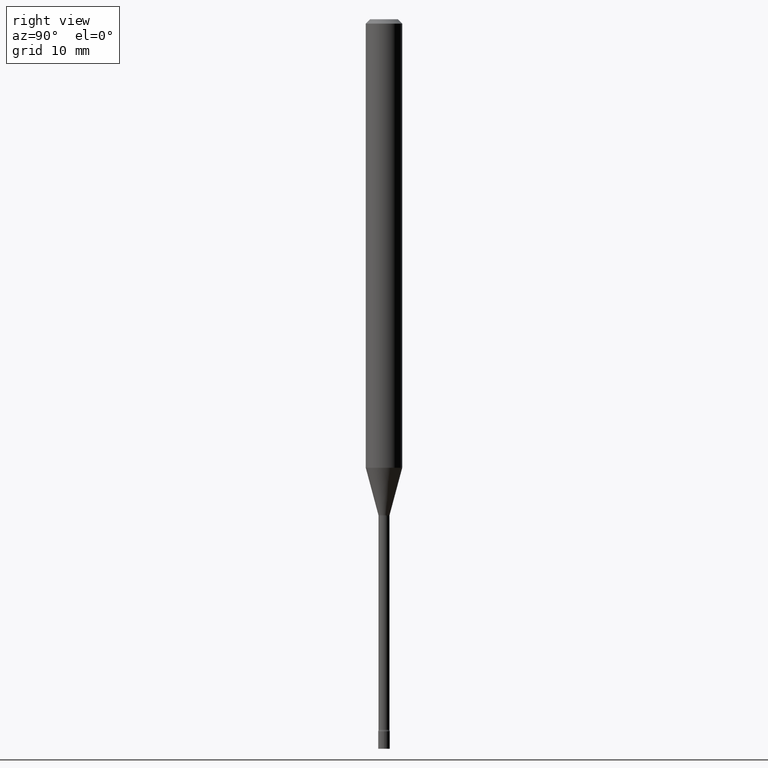
[diagram: clean part render]
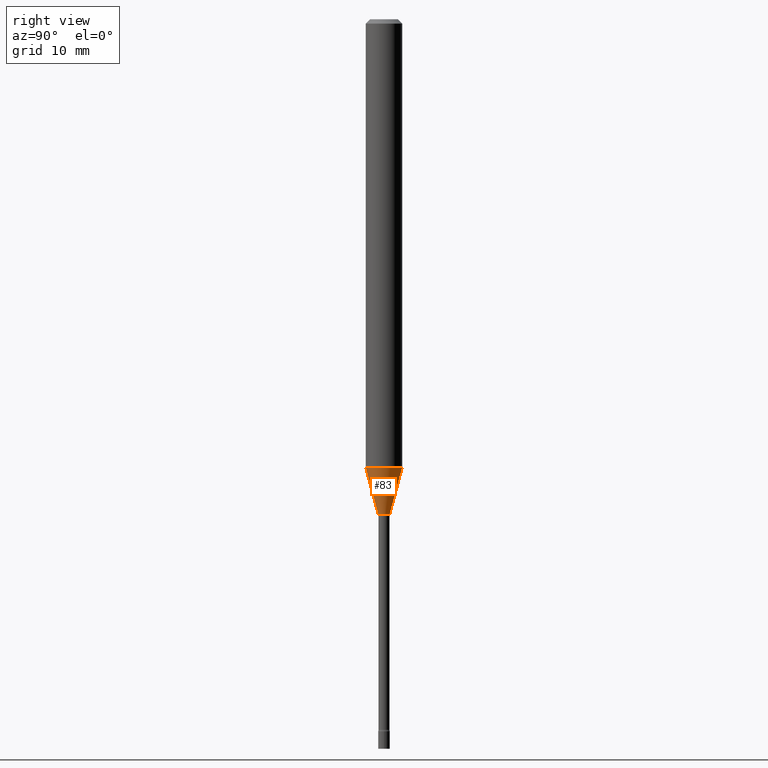
[diagram: same view with one face highlighted and labeled with its STEP entity id]
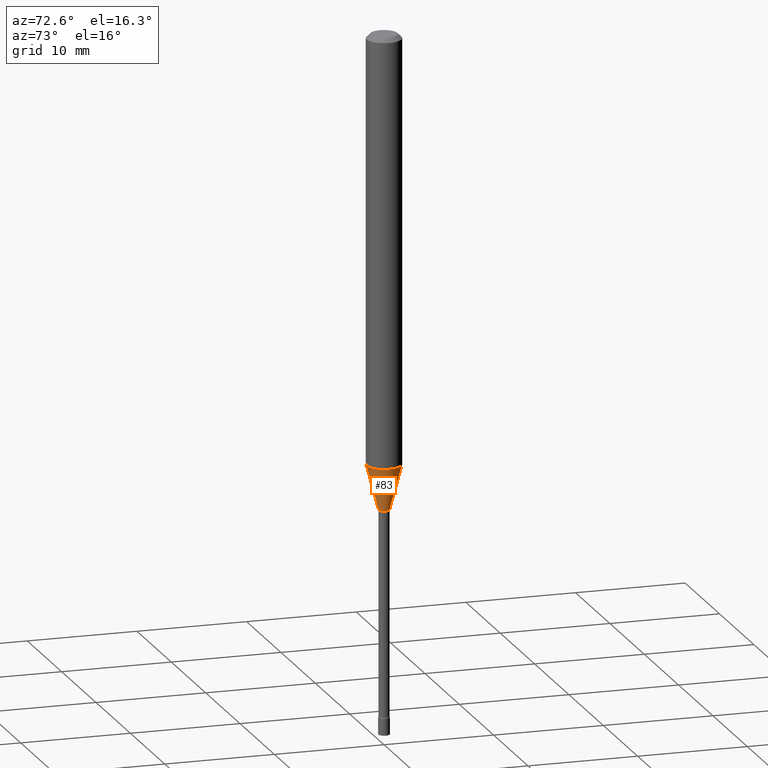
[diagram: same view with one face highlighted and labeled with its STEP entity id]
A machine part, right view. The second image highlights one B-rep face of the part: STEP entity #83.
A second angle (auxiliary view) of the same face is appended — the face is thin or edge-on in the first view.
In plain terms, the highlighted conical surface has half-angle 15 deg.
Its self-contained STEP definition (entity closure, byte-faithful):
#4 = ORIENTED_EDGE ( 'NONE', *, *, #144, .F. ) ;
#24 = LINE ( 'NONE', #286, #421 ) ;
#26 = CIRCLE ( 'NONE', #461, 0.01931111260566397564 ) ;
#28 = EDGE_CURVE ( 'NONE', #481, #315, #24, .T. ) ;
#34 = AXIS2_PLACEMENT_3D ( 'NONE', #168, #490, #385 ) ;
#38 = EDGE_LOOP ( 'NONE', ( #58, #468, #4, #279 ) ) ;
#48 = CARTESIAN_POINT ( 'NONE',  ( 2.906514588320701631E-16, 0.01931111260565804635, -1.698092501787273001 ) ) ;
#58 = ORIENTED_EDGE ( 'NONE', *, *, #222, .T. ) ;
#83 = ADVANCED_FACE ( 'NONE', ( #219 ), #426, .T. ) ;
#121 = CARTESIAN_POINT ( 'NONE',  ( -1.348487785899068030E-16, -0.01931111260566990492, -1.698092501787273001 ) ) ;
#138 = CARTESIAN_POINT ( 'NONE',  ( 3.758396032934700996E-29, -5.366187674140293231E-15, -1.536909379709240131 ) ) ;
#142 = CARTESIAN_POINT ( 'NONE',  ( -1.348487785899068030E-16, -0.01931111260566990492, -1.698092501787273001 ) ) ;
#144 = EDGE_CURVE ( 'NONE', #190, #315, #501, .T. ) ;
#151 = CARTESIAN_POINT ( 'NONE',  ( -4.364351673553541985E-16, -0.06250000000000538458, -1.536909379709239909 ) ) ;
#168 = CARTESIAN_POINT ( 'NONE',  ( 4.152557207687056191E-29, -5.928965736655743861E-15, -1.698092501787273001 ) ) ;
#190 = VERTEX_POINT ( 'NONE', #151 ) ;
#192 = CARTESIAN_POINT ( 'NONE',  ( 4.152557207687056191E-29, -5.928965736655743861E-15, -1.698092501787273001 ) ) ;
#219 = FACE_OUTER_BOUND ( 'NONE', #38, .T. ) ;
#222 = EDGE_CURVE ( 'NONE', #268, #481, #26, .T. ) ;
#268 = VERTEX_POINT ( 'NONE', #121 ) ;
#279 = ORIENTED_EDGE ( 'NONE', *, *, #381, .F. ) ;
#286 = CARTESIAN_POINT ( 'NONE',  ( 1.372137078140398694E-16, 0.01931111260565804635, -1.698092501787273001 ) ) ;
#298 = DIRECTION ( 'NONE',  ( -2.445424618103204141E-29, 3.491544618691502502E-15, 1.000000000000000000 ) ) ;
#315 = VERTEX_POINT ( 'NONE', #327 ) ;
#319 = DIRECTION ( 'NONE',  ( -2.445424618103204141E-29, 3.491544618691502502E-15, 1.000000000000000000 ) ) ;
#327 = CARTESIAN_POINT ( 'NONE',  ( 4.440892098500999885E-16, 0.06249999999999461542, -1.536909379709240575 ) ) ;
#361 = DIRECTION ( 'NONE',  ( -6.982962677686265922E-15, -1.000000000000000000, 0.000000000000000000 ) ) ;
#381 = EDGE_CURVE ( 'NONE', #268, #190, #498, .T. ) ;
#385 = DIRECTION ( 'NONE',  ( -6.982962677686265922E-15, -1.000000000000000000, 0.000000000000000000 ) ) ;
#414 = AXIS2_PLACEMENT_3D ( 'NONE', #138, #298, #420 ) ;
#415 = VECTOR ( 'NONE', #464, 39.37007874015748143 ) ;
#420 = DIRECTION ( 'NONE',  ( -6.982962677686265922E-15, -1.000000000000000000, 4.370956789862821150E-15 ) ) ;
#421 = VECTOR ( 'NONE', #500, 39.37007874015748854 ) ;
#426 = CONICAL_SURFACE ( 'NONE', #34, 0.01931111260566397564, 0.2617993877991498519 ) ;
#461 = AXIS2_PLACEMENT_3D ( 'NONE', #192, #319, #361 ) ;
#464 = DIRECTION ( 'NONE',  ( -1.807323732225327378E-15, -0.2588190451025177974, 0.9659258262890690894 ) ) ;
#468 = ORIENTED_EDGE ( 'NONE', *, *, #28, .T. ) ;
#481 = VERTEX_POINT ( 'NONE', #48 ) ;
#490 = DIRECTION ( 'NONE',  ( -2.445424618103204141E-29, 3.491544618691502502E-15, 1.000000000000000000 ) ) ;
#498 = LINE ( 'NONE', #142, #415 ) ;
#500 = DIRECTION ( 'NONE',  ( 1.839019923739597160E-15, 0.2588190451025245142, 0.9659258262890670910 ) ) ;
#501 = CIRCLE ( 'NONE', #414, 0.06250000000000000000 ) ;